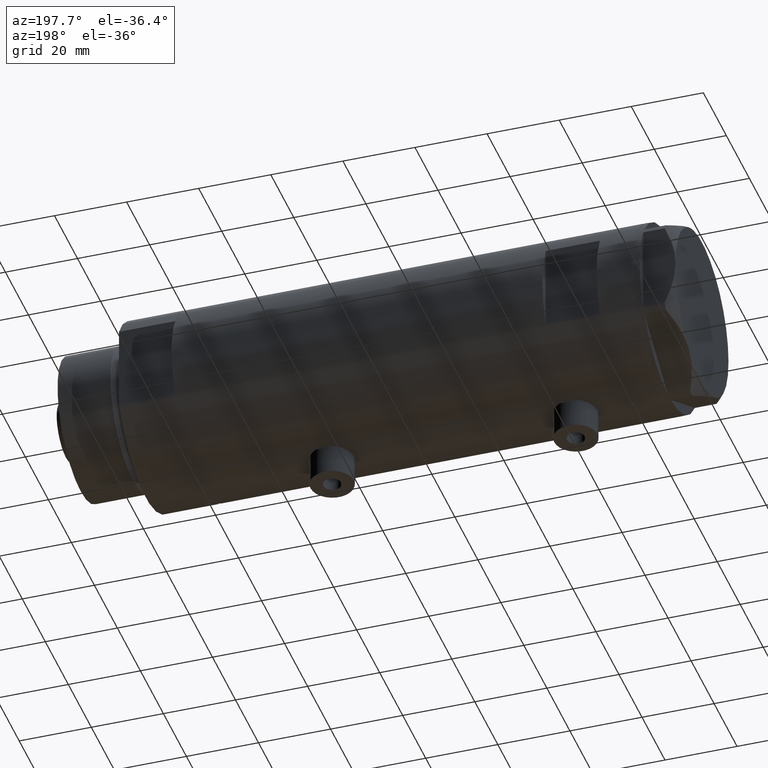
[diagram: clean part render]
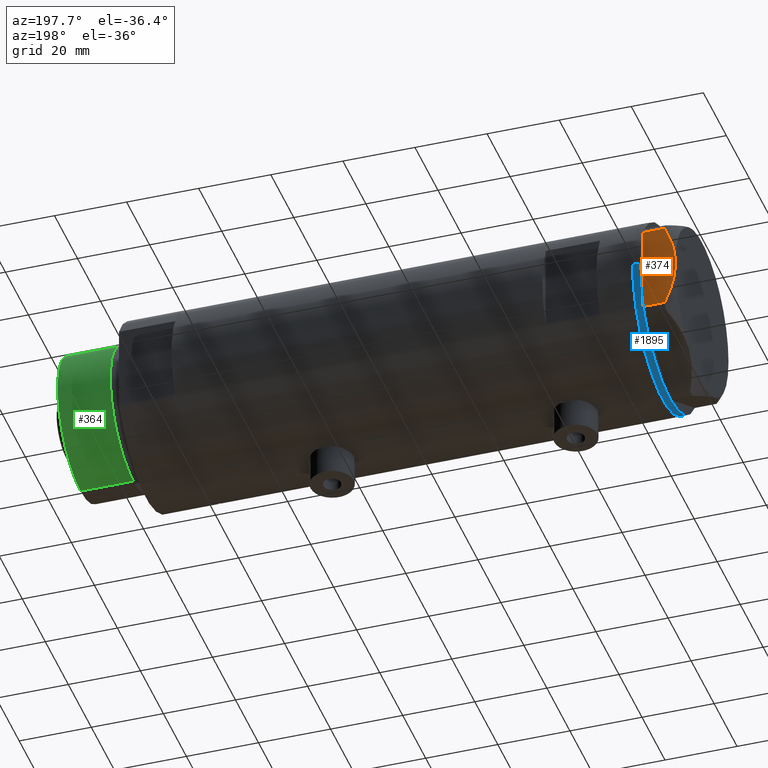
[diagram: same view with three faces highlighted in distinct colors, each labeled with its STEP entity id]
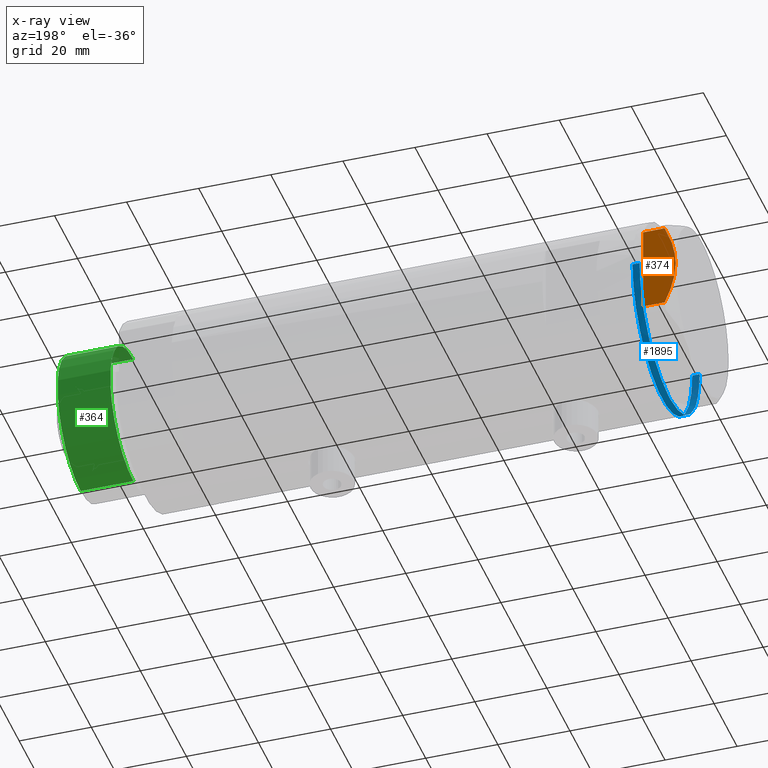
[diagram: x-ray of the same camera — body ghosted, the three highlighted faces saturated]
A machine part, auxiliary view with three faces highlighted in distinct colors.
The next image is the same camera in x-ray (body ghosted, the three faces saturated) — at least one of them is partly hidden behind the body in this view.
Their STEP definitions:

[orange] entity #374 — the highlighted planar face has unit normal (0, -1, 0).
#35 = CARTESIAN_POINT ( 'NONE',  ( 23.00000000000007461, -12.15905619136115412, 5.983800287807623519 ) ) ;
#120 = EDGE_CURVE ( 'NONE', #4394, #4217, #3700, .T. ) ;
#200 = CARTESIAN_POINT ( 'NONE',  ( 22.99999999999990052, 5.228918809624284236, 8.433337033849852560 ) ) ;
#226 = CARTESIAN_POINT ( 'NONE',  ( 22.99999999999984368, 11.20155944044832630, 6.421102682632754188 ) ) ;
#298 = VERTEX_POINT ( 'NONE', #919 ) ;
#317 = VERTEX_POINT ( 'NONE', #35 ) ;
#323 = CARTESIAN_POINT ( 'NONE',  ( 23.00000000000003197, -8.246028007352183664, 7.571131808646910599 ) ) ;
#374 = ADVANCED_FACE ( 'NONE', ( #4368 ), #3971, .F. ) ;
#385 = ORIENTED_EDGE ( 'NONE', *, *, #829, .T. ) ;
#704 = VECTOR ( 'NONE', #4511, 1000.000000000000000 ) ;
#798 = EDGE_CURVE ( 'NONE', #298, #4394, #2154, .T. ) ;
#829 = EDGE_CURVE ( 'NONE', #4217, #2221, #4986, .T. ) ;
#832 = CARTESIAN_POINT ( 'NONE',  ( 22.99999999999982236, 12.15905619136163729, 9.000000000000000000 ) ) ;
#919 = CARTESIAN_POINT ( 'NONE',  ( 23.00000000000007461, -12.15905619136115590, 0.000000000000000000 ) ) ;
#1009 = ORIENTED_EDGE ( 'NONE', *, *, #798, .T. ) ;
#1028 = CARTESIAN_POINT ( 'NONE',  ( 22.99999999999993960, 1.063773509315896648, 8.981438083606837708 ) ) ;
#1100 = CARTESIAN_POINT ( 'NONE',  ( 22.99999999999997513, -2.122900714017905699, 9.000000000000095923 ) ) ;
#1101 = DIRECTION ( 'NONE',  ( -1.000000000000000000, -1.032024811306395780E-14, 0.000000000000000000 ) ) ;
#1222 = EDGE_LOOP ( 'NONE', ( #5009, #1246, #1009, #2980, #385, #2183, #1797 ) ) ;
#1246 = ORIENTED_EDGE ( 'NONE', *, *, #2437, .T. ) ;
#1452 = CARTESIAN_POINT ( 'NONE',  ( 22.99999999999986500, 8.252113629125430450, 7.581642062680224115 ) ) ;
#1498 = CARTESIAN_POINT ( 'NONE',  ( 23.00000000000002842, -7.239756182922028493, 7.892186063422852449 ) ) ;
#1542 = DIRECTION ( 'NONE',  ( 0.000000000000000000, 0.000000000000000000, 1.000000000000000000 ) ) ;
#1609 = VERTEX_POINT ( 'NONE', #2819 ) ;
#1690 = CARTESIAN_POINT ( 'NONE',  ( 22.99999999999982236, 12.15905619136163729, 0.000000000000000000 ) ) ;
#1788 = CARTESIAN_POINT ( 'NONE',  ( 22.99999999999985079, 9.734726261263462632, 7.028924700095659617 ) ) ;
#1797 = ORIENTED_EDGE ( 'NONE', *, *, #1821, .F. ) ;
#1815 = CARTESIAN_POINT ( 'NONE',  ( 22.99999999999982947, 11.68282849742352525, 6.206372352695418648 ) ) ;
#1821 = EDGE_CURVE ( 'NONE', #2613, #1609, #2914, .T. ) ;
#1886 = CARTESIAN_POINT ( 'NONE',  ( 23.00000000000005684, -10.23890159976104641, 6.840812428290920622 ) ) ;
#2004 = LINE ( 'NONE', #832, #3274 ) ;
#2096 = CARTESIAN_POINT ( 'NONE',  ( 23.00000000000008527, -13.27905619136115867, 0.000000000000000000 ) ) ;
#2103 = EDGE_CURVE ( 'NONE', #2221, #1609, #2004, .T. ) ;
#2116 = AXIS2_PLACEMENT_3D ( 'NONE', #3579, #1101, #2258 ) ;
#2126 = VECTOR ( 'NONE', #3802, 1000.000000000000000 ) ;
#2154 = LINE ( 'NONE', #2096, #4320 ) ;
#2183 = ORIENTED_EDGE ( 'NONE', *, *, #2103, .T. ) ;
#2211 = CARTESIAN_POINT ( 'NONE',  ( 22.99999999999992539, 2.119709279062085727, 8.908535212173203988 ) ) ;
#2221 = VERTEX_POINT ( 'NONE', #1690 ) ;
#2258 = DIRECTION ( 'NONE',  ( 1.032024811306395780E-14, -1.000000000000000000, 0.000000000000000000 ) ) ;
#2437 = EDGE_CURVE ( 'NONE', #317, #298, #3670, .T. ) ;
#2520 = CARTESIAN_POINT ( 'NONE',  ( 23.00000000000007461, -12.12435565298200224, 0.000000000000000000 ) ) ;
#2613 = VERTEX_POINT ( 'NONE', #2615 ) ;
#2615 = CARTESIAN_POINT ( 'NONE',  ( 22.99999999999995026, 2.373657066004705010E-13, 9.000000000000000000 ) ) ;
#2616 = DIRECTION ( 'NONE',  ( -1.032024811306395780E-14, 1.000000000000000000, 0.000000000000000000 ) ) ;
#2637 = CARTESIAN_POINT ( 'NONE',  ( 22.99999999999995026, 2.373657066004705010E-13, 9.000000000000000000 ) ) ;
#2707 = CARTESIAN_POINT ( 'NONE',  ( 22.99999999999995026, 2.373657066004705010E-13, 9.000000000000000000 ) ) ;
#2819 = CARTESIAN_POINT ( 'NONE',  ( 22.99999999999982236, 12.15905619136164262, 5.983800287807618190 ) ) ;
#2882 = B_SPLINE_CURVE_WITH_KNOTS ( 'NONE', 3,
 ( #3475, #4736, #1886, #5113, #323, #1498, #3111, #4712, #1100, #2707 ),
 .UNSPECIFIED., .F., .F.,
 ( 4, 2, 2, 2, 4 ),
 ( 0.03516523594057417712, 0.03831677594541235687, 0.03989254594783144675, 0.04146831595025053663, 0.04777139595992689614 ),
 .UNSPECIFIED. ) ;
#2914 = B_SPLINE_CURVE_WITH_KNOTS ( 'NONE', 3,
 ( #2637, #5014, #1028, #2211, #3458, #3855, #200, #5068, #1452, #1788, #3805, #226, #1815, #3434 ),
 .UNSPECIFIED., .F., .F.,
 ( 4, 2, 2, 2, 2, 2, 4 ),
 ( 0.04777139595992689614, 0.04934380568070229067, 0.05091621540147768521, 0.05406103484302848122, 0.05720585428457927030, 0.05877826400535466483, 0.06035067372613005937 ),
 .UNSPECIFIED. ) ;
#2980 = ORIENTED_EDGE ( 'NONE', *, *, #120, .T. ) ;
#3111 = CARTESIAN_POINT ( 'NONE',  ( 23.00000000000002132, -6.734330413511252722, 8.039389741252669808 ) ) ;
#3156 = VECTOR ( 'NONE', #4001, 1000.000000000000000 ) ;
#3274 = VECTOR ( 'NONE', #1542, 1000.000000000000000 ) ;
#3434 = CARTESIAN_POINT ( 'NONE',  ( 22.99999999999982236, 12.15905619136164262, 5.983800287807618190 ) ) ;
#3458 = CARTESIAN_POINT ( 'NONE',  ( 22.99999999999992184, 2.643615312305318099, 8.854304560636265364 ) ) ;
#3475 = CARTESIAN_POINT ( 'NONE',  ( 23.00000000000007461, -12.15905619136115412, 5.983800287807623519 ) ) ;
#3579 = CARTESIAN_POINT ( 'NONE',  ( 23.00000000000008527, -13.27905619136115867, 9.000000000000000000 ) ) ;
#3670 = LINE ( 'NONE', #4396, #3156 ) ;
#3700 = LINE ( 'NONE', #4854, #704 ) ;
#3802 = DIRECTION ( 'NONE',  ( -1.032024811306395780E-14, 1.000000000000000000, 0.000000000000000000 ) ) ;
#3805 = CARTESIAN_POINT ( 'NONE',  ( 22.99999999999983658, 10.22738952213810926, 6.832470313674774864 ) ) ;
#3855 = CARTESIAN_POINT ( 'NONE',  ( 22.99999999999990763, 4.203926054642127319, 8.641681223122510858 ) ) ;
#3971 = PLANE ( 'NONE',  #2116 ) ;
#4001 = DIRECTION ( 'NONE',  ( 0.000000000000000000, 0.000000000000000000, -1.000000000000000000 ) ) ;
#4217 = VERTEX_POINT ( 'NONE', #4875 ) ;
#4219 = CARTESIAN_POINT ( 'NONE',  ( 23.00000000000008527, -13.27905619136115867, 0.000000000000000000 ) ) ;
#4320 = VECTOR ( 'NONE', #2616, 1000.000000000000000 ) ;
#4368 = FACE_OUTER_BOUND ( 'NONE', #1222, .T. ) ;
#4394 = VERTEX_POINT ( 'NONE', #2520 ) ;
#4396 = CARTESIAN_POINT ( 'NONE',  ( 23.00000000000007461, -12.15905619136115590, 9.000000000000000000 ) ) ;
#4493 = EDGE_CURVE ( 'NONE', #317, #2613, #2882, .T. ) ;
#4511 = DIRECTION ( 'NONE',  ( -1.032024811306395780E-14, 1.000000000000000000, 0.000000000000000000 ) ) ;
#4712 = CARTESIAN_POINT ( 'NONE',  ( 22.99999999999999289, -4.194757081058811288, 8.703000351525204792 ) ) ;
#4736 = CARTESIAN_POINT ( 'NONE',  ( 23.00000000000006395, -11.20825071633898240, 6.428173306378455187 ) ) ;
#4854 = CARTESIAN_POINT ( 'NONE',  ( 23.00000000000008527, -13.27905619136115867, 0.000000000000000000 ) ) ;
#4875 = CARTESIAN_POINT ( 'NONE',  ( 22.99999999999982592, 12.12435565298247653, 0.000000000000000000 ) ) ;
#4986 = LINE ( 'NONE', #4219, #2126 ) ;
#5009 = ORIENTED_EDGE ( 'NONE', *, *, #4493, .F. ) ;
#5014 = CARTESIAN_POINT ( 'NONE',  ( 22.99999999999994671, 0.5295934231899334099, 9.000000000000095923 ) ) ;
#5068 = CARTESIAN_POINT ( 'NONE',  ( 22.99999999999987921, 7.253003311474552461, 7.903276810347635184 ) ) ;
#5113 = CARTESIAN_POINT ( 'NONE',  ( 23.00000000000004263, -8.748091966971204059, 7.396818978284578350 ) ) ;

[blue] entity #1895 — the highlighted cylindrical surface (partial cylindrical patch) has radius 26 mm, axis along (-1, -0, 0).
#14 = AXIS2_PLACEMENT_3D ( 'NONE', #2239, #1426, #3038 ) ;
#115 = EDGE_CURVE ( 'NONE', #140, #1663, #5163, .T. ) ;
#128 = DIRECTION ( 'NONE',  ( -1.000000000000000000, 0.000000000000000000, 0.000000000000000000 ) ) ;
#140 = VERTEX_POINT ( 'NONE', #2446 ) ;
#146 = VECTOR ( 'NONE', #3440, 1000.000000000000000 ) ;
#154 = VECTOR ( 'NONE', #390, 1000.000000000000000 ) ;
#271 = EDGE_CURVE ( 'NONE', #2678, #140, #4178, .T. ) ;
#283 = VERTEX_POINT ( 'NONE', #4393 ) ;
#349 = CARTESIAN_POINT ( 'NONE',  ( -22.46498481720481877, 13.09076325594744006, 0.000000000000000000 ) ) ;
#370 = CARTESIAN_POINT ( 'NONE',  ( -22.67167229899207115, 12.72773645103935003, 0.000000000000000000 ) ) ;
#377 = CIRCLE ( 'NONE', #2895, 26.00000000000000355 ) ;
#390 = DIRECTION ( 'NONE',  ( -0.000000000000000000, -0.000000000000000000, 1.000000000000000000 ) ) ;
#482 = DIRECTION ( 'NONE',  ( 0.000000000000000000, 0.000000000000000000, -1.000000000000000000 ) ) ;
#538 = VERTEX_POINT ( 'NONE', #2541 ) ;
#542 = CIRCLE ( 'NONE', #2988, 26.00000000000000355 ) ;
#581 = CARTESIAN_POINT ( 'NONE',  ( 22.67167229899213510, 12.72773645103923990, 0.000000000000000000 ) ) ;
#588 = CARTESIAN_POINT ( 'NONE',  ( 0.3132930502238189252, 25.99811238272274139, 0.000000000000000000 ) ) ;
#629 = CARTESIAN_POINT ( 'NONE',  ( 22.35837924876908289, 13.27037593168378216, 0.000000000000000000 ) ) ;
#644 = LINE ( 'NONE', #2596, #146 ) ;
#648 = CIRCLE ( 'NONE', #5031, 26.00000000000000355 ) ;
#726 = ORIENTED_EDGE ( 'NONE', *, *, #4763, .T. ) ;
#810 = VERTEX_POINT ( 'NONE', #3777 ) ;
#836 = CARTESIAN_POINT ( 'NONE',  ( 26.00000000000000355, 0.000000000000000000, -2.000000000000000000 ) ) ;
#847 = DIRECTION ( 'NONE',  ( -1.000000000000000000, 0.000000000000000000, 0.000000000000000000 ) ) ;
#897 = AXIS2_PLACEMENT_3D ( 'NONE', #1775, #2999, #2968 ) ;
#985 = CARTESIAN_POINT ( 'NONE',  ( 0.000000000000000000, 0.000000000000000000, 0.000000000000000000 ) ) ;
#994 = DIRECTION ( 'NONE',  ( -1.000000000000000000, 0.000000000000000000, 0.000000000000000000 ) ) ;
#1039 = ORIENTED_EDGE ( 'NONE', *, *, #1201, .T. ) ;
#1040 = CYLINDRICAL_SURFACE ( 'NONE', #4293, 26.00000000000000355 ) ;
#1070 = EDGE_CURVE ( 'NONE', #810, #283, #3495, .T. ) ;
#1074 = DIRECTION ( 'NONE',  ( -1.000000000000000000, 0.000000000000000000, 0.000000000000000000 ) ) ;
#1086 = CARTESIAN_POINT ( 'NONE',  ( -26.00000000000000355, 3.184081677783118585E-15, -2.000000000000000000 ) ) ;
#1094 = DIRECTION ( 'NONE',  ( 1.000000000000000000, 0.000000000000000000, 0.000000000000000000 ) ) ;
#1131 = ORIENTED_EDGE ( 'NONE', *, *, #4796, .T. ) ;
#1138 = CARTESIAN_POINT ( 'NONE',  ( -22.00000000000008171, 13.85640646055089498, 0.000000000000000000 ) ) ;
#1169 = DIRECTION ( 'NONE',  ( -1.000000000000000000, 0.000000000000000000, 0.000000000000000000 ) ) ;
#1201 = EDGE_CURVE ( 'NONE', #283, #4152, #3466, .T. ) ;
#1204 = EDGE_CURVE ( 'NONE', #1588, #1747, #542, .T. ) ;
#1208 = CIRCLE ( 'NONE', #2131, 26.00000000000000355 ) ;
#1223 = EDGE_CURVE ( 'NONE', #4217, #538, #1208, .T. ) ;
#1243 = EDGE_CURVE ( 'NONE', #1509, #810, #377, .T. ) ;
#1299 = ORIENTED_EDGE ( 'NONE', *, *, #271, .T. ) ;
#1311 = VERTEX_POINT ( 'NONE', #1376 ) ;
#1376 = CARTESIAN_POINT ( 'NONE',  ( -26.00000000000000355, 3.184081677783118585E-15, 0.000000000000000000 ) ) ;
#1407 = EDGE_CURVE ( 'NONE', #1311, #4503, #3986, .T. ) ;
#1426 = DIRECTION ( 'NONE',  ( 0.000000000000000000, 0.000000000000000000, -1.000000000000000000 ) ) ;
#1509 = VERTEX_POINT ( 'NONE', #1872 ) ;
#1588 = VERTEX_POINT ( 'NONE', #2697 ) ;
#1632 = DIRECTION ( 'NONE',  ( 0.000000000000000000, 0.000000000000000000, -1.000000000000000000 ) ) ;
#1635 = DIRECTION ( 'NONE',  ( -1.000000000000000000, 0.000000000000000000, 0.000000000000000000 ) ) ;
#1663 = VERTEX_POINT ( 'NONE', #1138 ) ;
#1747 = VERTEX_POINT ( 'NONE', #4908 ) ;
#1757 = CARTESIAN_POINT ( 'NONE',  ( 0.000000000000000000, 0.000000000000000000, 0.000000000000000000 ) ) ;
#1775 = CARTESIAN_POINT ( 'NONE',  ( 0.000000000000000000, 0.000000000000000000, 0.000000000000000000 ) ) ;
#1833 = CARTESIAN_POINT ( 'NONE',  ( 22.56942594318079642, 12.90986591935734218, 0.000000000000000000 ) ) ;
#1852 = EDGE_CURVE ( 'NONE', #3731, #3080, #3544, .T. ) ;
#1872 = CARTESIAN_POINT ( 'NONE',  ( 0.9999999999999297229, 25.98076211353316722, 0.000000000000000000 ) ) ;
#1895 = ADVANCED_FACE ( 'NONE', ( #2628 ), #1040, .T. ) ;
#1934 = CARTESIAN_POINT ( 'NONE',  ( 0.000000000000000000, 0.000000000000000000, 0.000000000000000000 ) ) ;
#1962 = CARTESIAN_POINT ( 'NONE',  ( -22.35837924876937066, 13.27037593168329543, 0.000000000000000000 ) ) ;
#2120 = CARTESIAN_POINT ( 'NONE',  ( -0.1044411259765276462, 26.00062917530480888, 0.000000000000000000 ) ) ;
#2131 = AXIS2_PLACEMENT_3D ( 'NONE', #2147, #2280, #4735 ) ;
#2147 = CARTESIAN_POINT ( 'NONE',  ( 0.000000000000000000, 0.000000000000000000, 0.000000000000000000 ) ) ;
#2239 = CARTESIAN_POINT ( 'NONE',  ( 0.000000000000000000, 0.000000000000000000, -2.000000000000000000 ) ) ;
#2242 = CIRCLE ( 'NONE', #2582, 26.00000000000000355 ) ;
#2277 = DIRECTION ( 'NONE',  ( -0.000000000000000000, -0.000000000000000000, 1.000000000000000000 ) ) ;
#2280 = DIRECTION ( 'NONE',  ( 0.000000000000000000, 0.000000000000000000, -1.000000000000000000 ) ) ;
#2282 = ORIENTED_EDGE ( 'NONE', *, *, #4614, .F. ) ;
#2336 = DIRECTION ( 'NONE',  ( 0.000000000000000000, 0.000000000000000000, -1.000000000000000000 ) ) ;
#2349 = ORIENTED_EDGE ( 'NONE', *, *, #1223, .T. ) ;
#2446 = CARTESIAN_POINT ( 'NONE',  ( -22.35837924876937066, 13.27037593168329543, 0.000000000000000000 ) ) ;
#2467 = ORIENTED_EDGE ( 'NONE', *, *, #3786, .T. ) ;
#2537 = EDGE_CURVE ( 'NONE', #1747, #4863, #5096, .T. ) ;
#2541 = CARTESIAN_POINT ( 'NONE',  ( 26.00000000000000355, 0.000000000000000000, 0.000000000000000000 ) ) ;
#2554 = CARTESIAN_POINT ( 'NONE',  ( -22.67167229899207115, 12.72773645103935003, 0.000000000000000000 ) ) ;
#2575 = ORIENTED_EDGE ( 'NONE', *, *, #1852, .F. ) ;
#2582 = AXIS2_PLACEMENT_3D ( 'NONE', #1934, #2336, #1074 ) ;
#2596 = CARTESIAN_POINT ( 'NONE',  ( -26.00000000000000355, 3.184081677783118585E-15, -2.000000000000000000 ) ) ;
#2628 = FACE_OUTER_BOUND ( 'NONE', #3635, .T. ) ;
#2645 = AXIS2_PLACEMENT_3D ( 'NONE', #985, #2880, #3684 ) ;
#2678 = VERTEX_POINT ( 'NONE', #2554 ) ;
#2697 = CARTESIAN_POINT ( 'NONE',  ( -0.9999999999999089617, 25.98076211353316367, 0.000000000000000000 ) ) ;
#2826 = ORIENTED_EDGE ( 'NONE', *, *, #2537, .T. ) ;
#2880 = DIRECTION ( 'NONE',  ( 0.000000000000000000, 0.000000000000000000, -1.000000000000000000 ) ) ;
#2895 = AXIS2_PLACEMENT_3D ( 'NONE', #4790, #3182, #1169 ) ;
#2919 = CARTESIAN_POINT ( 'NONE',  ( 26.00000000000000355, 0.000000000000000000, -2.000000000000000000 ) ) ;
#2968 = DIRECTION ( 'NONE',  ( -1.000000000000000000, 0.000000000000000000, 0.000000000000000000 ) ) ;
#2988 = AXIS2_PLACEMENT_3D ( 'NONE', #4631, #3078, #3451 ) ;
#2999 = DIRECTION ( 'NONE',  ( 0.000000000000000000, 0.000000000000000000, -1.000000000000000000 ) ) ;
#3038 = DIRECTION ( 'NONE',  ( -1.000000000000000000, 0.000000000000000000, 0.000000000000000000 ) ) ;
#3078 = DIRECTION ( 'NONE',  ( 0.000000000000000000, 0.000000000000000000, -1.000000000000000000 ) ) ;
#3080 = VERTEX_POINT ( 'NONE', #2919 ) ;
#3182 = DIRECTION ( 'NONE',  ( 0.000000000000000000, 0.000000000000000000, -1.000000000000000000 ) ) ;
#3324 = CARTESIAN_POINT ( 'NONE',  ( -0.3132930502240048320, 25.99811238272273783, 0.000000000000000000 ) ) ;
#3440 = DIRECTION ( 'NONE',  ( -0.000000000000000000, -0.000000000000000000, 1.000000000000000000 ) ) ;
#3443 = ORIENTED_EDGE ( 'NONE', *, *, #1070, .T. ) ;
#3451 = DIRECTION ( 'NONE',  ( -1.000000000000000000, 0.000000000000000000, 0.000000000000000000 ) ) ;
#3466 = B_SPLINE_CURVE_WITH_KNOTS ( 'NONE', 3,
 ( #629, #4579, #1833, #581 ),
 .UNSPECIFIED., .F., .F.,
 ( 4, 4 ),
 ( 0.000000000000000000, 1.000000000000000000 ),
 .UNSPECIFIED. ) ;
#3469 = CARTESIAN_POINT ( 'NONE',  ( 0.3132930502238189252, 25.99811238272274139, 0.000000000000000000 ) ) ;
#3470 = ORIENTED_EDGE ( 'NONE', *, *, #1407, .T. ) ;
#3495 = CIRCLE ( 'NONE', #4409, 26.00000000000000355 ) ;
#3544 = CIRCLE ( 'NONE', #14, 26.00000000000000355 ) ;
#3603 = EDGE_CURVE ( 'NONE', #3731, #1311, #644, .T. ) ;
#3635 = EDGE_LOOP ( 'NONE', ( #2575, #5094, #3470, #3866, #1299, #4658, #2467, #4643, #2826, #1131, #4557, #3443, #1039, #726, #2349, #2282 ) ) ;
#3684 = DIRECTION ( 'NONE',  ( -1.000000000000000000, 0.000000000000000000, 0.000000000000000000 ) ) ;
#3731 = VERTEX_POINT ( 'NONE', #1086 ) ;
#3769 = DIRECTION ( 'NONE',  ( 0.000000000000000000, 0.000000000000000000, -1.000000000000000000 ) ) ;
#3777 = CARTESIAN_POINT ( 'NONE',  ( 21.99999999999987210, 13.85640646055121827, 0.000000000000000000 ) ) ;
#3786 = EDGE_CURVE ( 'NONE', #1663, #1588, #5110, .T. ) ;
#3815 = CARTESIAN_POINT ( 'NONE',  ( 0.000000000000000000, 0.000000000000000000, -2.000000000000000000 ) ) ;
#3866 = ORIENTED_EDGE ( 'NONE', *, *, #4459, .T. ) ;
#3986 = CIRCLE ( 'NONE', #2645, 26.00000000000000355 ) ;
#4084 = AXIS2_PLACEMENT_3D ( 'NONE', #4455, #1632, #847 ) ;
#4087 = CIRCLE ( 'NONE', #897, 26.00000000000000355 ) ;
#4152 = VERTEX_POINT ( 'NONE', #5142 ) ;
#4155 = CARTESIAN_POINT ( 'NONE',  ( 0.1044411259763403238, 26.00062917530480888, 0.000000000000000000 ) ) ;
#4178 = B_SPLINE_CURVE_WITH_KNOTS ( 'NONE', 3,
 ( #370, #4720, #349, #1962 ),
 .UNSPECIFIED., .F., .F.,
 ( 4, 4 ),
 ( 0.000000000000000000, 1.000000000000000000 ),
 .UNSPECIFIED. ) ;
#4217 = VERTEX_POINT ( 'NONE', #4875 ) ;
#4293 = AXIS2_PLACEMENT_3D ( 'NONE', #3815, #2277, #1094 ) ;
#4393 = CARTESIAN_POINT ( 'NONE',  ( 22.35837924876908289, 13.27037593168378216, 0.000000000000000000 ) ) ;
#4400 = AXIS2_PLACEMENT_3D ( 'NONE', #4432, #482, #1635 ) ;
#4409 = AXIS2_PLACEMENT_3D ( 'NONE', #1757, #3769, #994 ) ;
#4432 = CARTESIAN_POINT ( 'NONE',  ( 0.000000000000000000, 0.000000000000000000, 0.000000000000000000 ) ) ;
#4455 = CARTESIAN_POINT ( 'NONE',  ( 0.000000000000000000, 0.000000000000000000, 0.000000000000000000 ) ) ;
#4459 = EDGE_CURVE ( 'NONE', #4503, #2678, #2242, .T. ) ;
#4503 = VERTEX_POINT ( 'NONE', #5137 ) ;
#4557 = ORIENTED_EDGE ( 'NONE', *, *, #1243, .T. ) ;
#4579 = CARTESIAN_POINT ( 'NONE',  ( 22.46498481720465179, 13.09076325594772960, 0.000000000000000000 ) ) ;
#4614 = EDGE_CURVE ( 'NONE', #3080, #538, #5183, .T. ) ;
#4631 = CARTESIAN_POINT ( 'NONE',  ( 0.000000000000000000, 0.000000000000000000, 0.000000000000000000 ) ) ;
#4643 = ORIENTED_EDGE ( 'NONE', *, *, #1204, .T. ) ;
#4658 = ORIENTED_EDGE ( 'NONE', *, *, #115, .T. ) ;
#4720 = CARTESIAN_POINT ( 'NONE',  ( -22.56942594318084616, 12.90986591935725158, 0.000000000000000000 ) ) ;
#4735 = DIRECTION ( 'NONE',  ( -1.000000000000000000, 0.000000000000000000, 0.000000000000000000 ) ) ;
#4763 = EDGE_CURVE ( 'NONE', #4152, #4217, #4087, .T. ) ;
#4790 = CARTESIAN_POINT ( 'NONE',  ( 0.000000000000000000, 0.000000000000000000, 0.000000000000000000 ) ) ;
#4796 = EDGE_CURVE ( 'NONE', #4863, #1509, #648, .T. ) ;
#4863 = VERTEX_POINT ( 'NONE', #3469 ) ;
#4875 = CARTESIAN_POINT ( 'NONE',  ( 22.99999999999982592, 12.12435565298247653, 0.000000000000000000 ) ) ;
#4908 = CARTESIAN_POINT ( 'NONE',  ( -0.3132930502240048320, 25.99811238272273783, 0.000000000000000000 ) ) ;
#4997 = CARTESIAN_POINT ( 'NONE',  ( 0.000000000000000000, 0.000000000000000000, 0.000000000000000000 ) ) ;
#5028 = DIRECTION ( 'NONE',  ( 0.000000000000000000, 0.000000000000000000, -1.000000000000000000 ) ) ;
#5031 = AXIS2_PLACEMENT_3D ( 'NONE', #4997, #5028, #128 ) ;
#5094 = ORIENTED_EDGE ( 'NONE', *, *, #3603, .T. ) ;
#5096 = B_SPLINE_CURVE_WITH_KNOTS ( 'NONE', 3,
 ( #3324, #2120, #4155, #588 ),
 .UNSPECIFIED., .F., .F.,
 ( 4, 4 ),
 ( 0.000000000000000000, 1.000000000000000000 ),
 .UNSPECIFIED. ) ;
#5110 = CIRCLE ( 'NONE', #4084, 26.00000000000000355 ) ;
#5137 = CARTESIAN_POINT ( 'NONE',  ( -22.99999999999999289, 12.12435565298215856, 0.000000000000000000 ) ) ;
#5142 = CARTESIAN_POINT ( 'NONE',  ( 22.67167229899213510, 12.72773645103923990, 0.000000000000000000 ) ) ;
#5163 = CIRCLE ( 'NONE', #4400, 26.00000000000000355 ) ;
#5183 = LINE ( 'NONE', #836, #154 ) ;

[green] entity #364 — the highlighted cylindrical surface (partial cylindrical patch) has radius 20 mm, axis along (-1, -0, 0).
#111 = EDGE_LOOP ( 'NONE', ( #1703, #2214, #4575, #4888 ) ) ;
#364 = ADVANCED_FACE ( 'NONE', ( #3477 ), #3159, .T. ) ;
#420 = DIRECTION ( 'NONE',  ( 1.000000000000000000, 0.000000000000000000, 0.000000000000000000 ) ) ;
#439 = CARTESIAN_POINT ( 'NONE',  ( 19.99999999999999645, 2.449293598294706119E-15, 33.50000000000000000 ) ) ;
#526 = CARTESIAN_POINT ( 'NONE',  ( 19.99999999999999645, 2.449293598294706119E-15, 33.50000000000000000 ) ) ;
#809 = LINE ( 'NONE', #439, #1225 ) ;
#932 = DIRECTION ( 'NONE',  ( 0.000000000000000000, 0.000000000000000000, 1.000000000000000000 ) ) ;
#1111 = CARTESIAN_POINT ( 'NONE',  ( -19.99999999999999645, 0.000000000000000000, 33.50000000000000000 ) ) ;
#1112 = CARTESIAN_POINT ( 'NONE',  ( -19.99999999999999645, 0.000000000000000000, 18.87384048104053846 ) ) ;
#1147 = AXIS2_PLACEMENT_3D ( 'NONE', #3612, #1199, #420 ) ;
#1199 = DIRECTION ( 'NONE',  ( -0.000000000000000000, -0.000000000000000000, 1.000000000000000000 ) ) ;
#1225 = VECTOR ( 'NONE', #3229, 1000.000000000000000 ) ;
#1327 = CARTESIAN_POINT ( 'NONE',  ( 0.000000000000000000, 0.000000000000000000, 33.50000000000000000 ) ) ;
#1528 = VERTEX_POINT ( 'NONE', #1112 ) ;
#1703 = ORIENTED_EDGE ( 'NONE', *, *, #4847, .F. ) ;
#1888 = CARTESIAN_POINT ( 'NONE',  ( 0.000000000000000000, 0.000000000000000000, 33.50000000000000000 ) ) ;
#2086 = CARTESIAN_POINT ( 'NONE',  ( 19.99999999999999645, 2.449293598294706119E-15, 18.87384048104053846 ) ) ;
#2119 = AXIS2_PLACEMENT_3D ( 'NONE', #1888, #4769, #3135 ) ;
#2214 = ORIENTED_EDGE ( 'NONE', *, *, #4565, .T. ) ;
#2540 = DIRECTION ( 'NONE',  ( 1.000000000000000000, 0.000000000000000000, 0.000000000000000000 ) ) ;
#2588 = CIRCLE ( 'NONE', #3258, 19.99999999999999645 ) ;
#2611 = VERTEX_POINT ( 'NONE', #526 ) ;
#2619 = VERTEX_POINT ( 'NONE', #2982 ) ;
#2753 = VERTEX_POINT ( 'NONE', #2086 ) ;
#2982 = CARTESIAN_POINT ( 'NONE',  ( -19.99999999999999645, 0.000000000000000000, 33.50000000000000000 ) ) ;
#3135 = DIRECTION ( 'NONE',  ( -1.000000000000000000, 0.000000000000000000, 0.000000000000000000 ) ) ;
#3159 = CYLINDRICAL_SURFACE ( 'NONE', #2119, 19.99999999999999645 ) ;
#3229 = DIRECTION ( 'NONE',  ( -0.000000000000000000, -0.000000000000000000, -1.000000000000000000 ) ) ;
#3258 = AXIS2_PLACEMENT_3D ( 'NONE', #1327, #932, #2540 ) ;
#3477 = FACE_OUTER_BOUND ( 'NONE', #111, .T. ) ;
#3612 = CARTESIAN_POINT ( 'NONE',  ( 0.000000000000000000, 0.000000000000000000, 18.87384048104053846 ) ) ;
#3765 = EDGE_CURVE ( 'NONE', #2619, #1528, #4726, .T. ) ;
#3928 = VECTOR ( 'NONE', #4881, 1000.000000000000000 ) ;
#4271 = EDGE_CURVE ( 'NONE', #2753, #1528, #4772, .T. ) ;
#4565 = EDGE_CURVE ( 'NONE', #2611, #2753, #809, .T. ) ;
#4575 = ORIENTED_EDGE ( 'NONE', *, *, #4271, .T. ) ;
#4726 = LINE ( 'NONE', #1111, #3928 ) ;
#4769 = DIRECTION ( 'NONE',  ( -0.000000000000000000, -0.000000000000000000, -1.000000000000000000 ) ) ;
#4772 = CIRCLE ( 'NONE', #1147, 19.99999999999999645 ) ;
#4847 = EDGE_CURVE ( 'NONE', #2611, #2619, #2588, .T. ) ;
#4881 = DIRECTION ( 'NONE',  ( -0.000000000000000000, -0.000000000000000000, -1.000000000000000000 ) ) ;
#4888 = ORIENTED_EDGE ( 'NONE', *, *, #3765, .F. ) ;